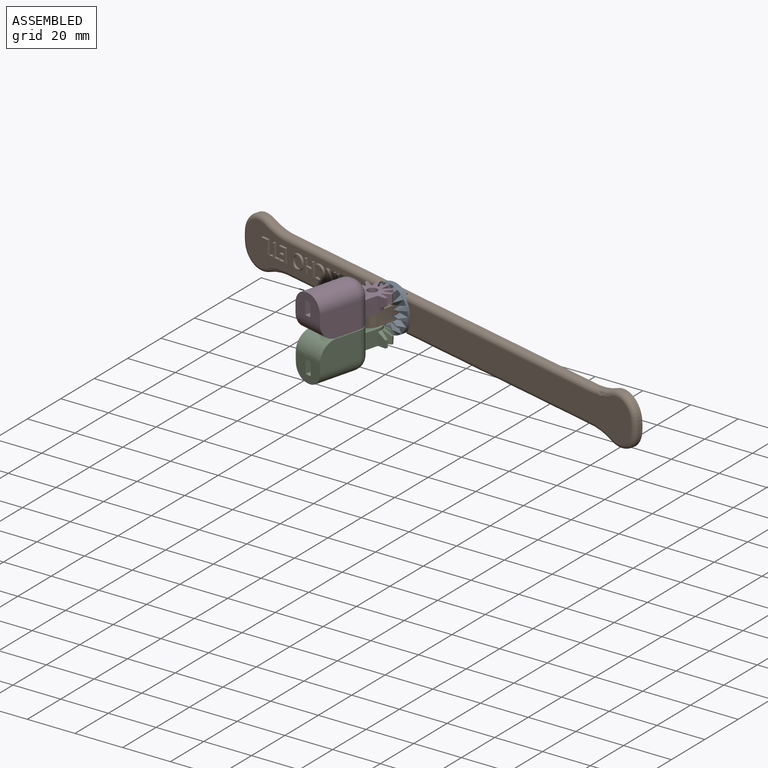
[diagram: assembled view]
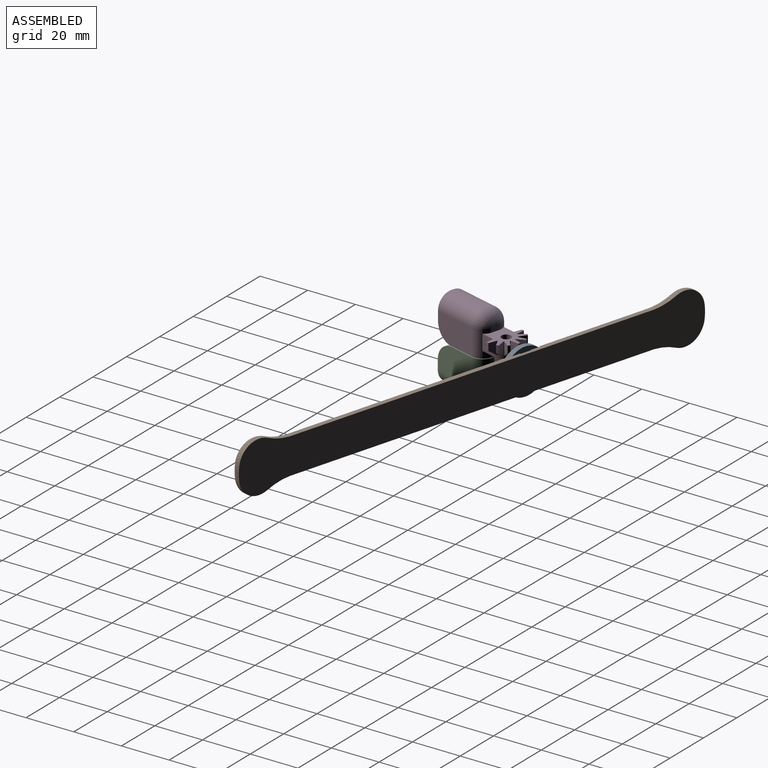
[diagram: assembled view, second angle]
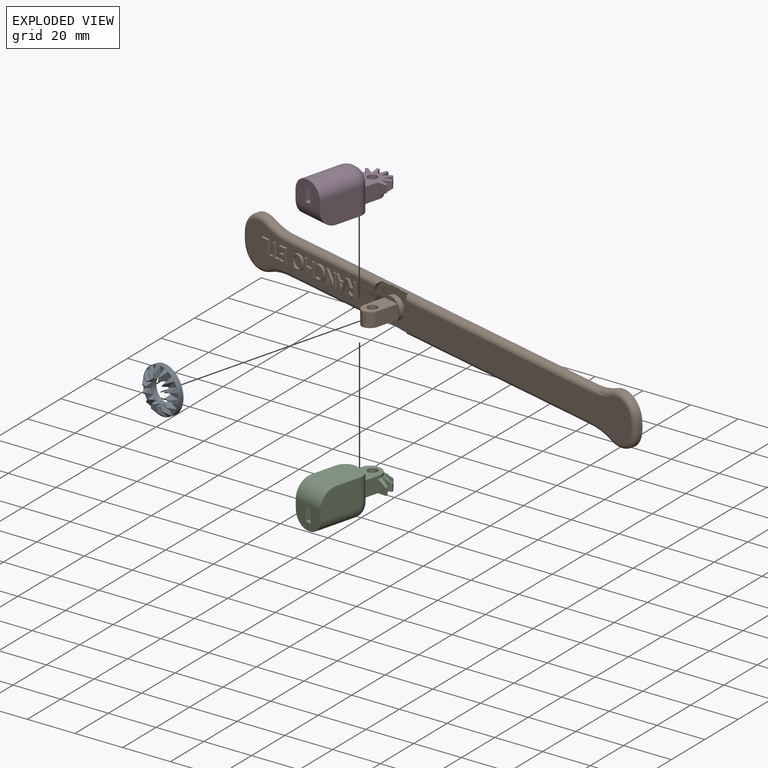
[diagram: exploded view]
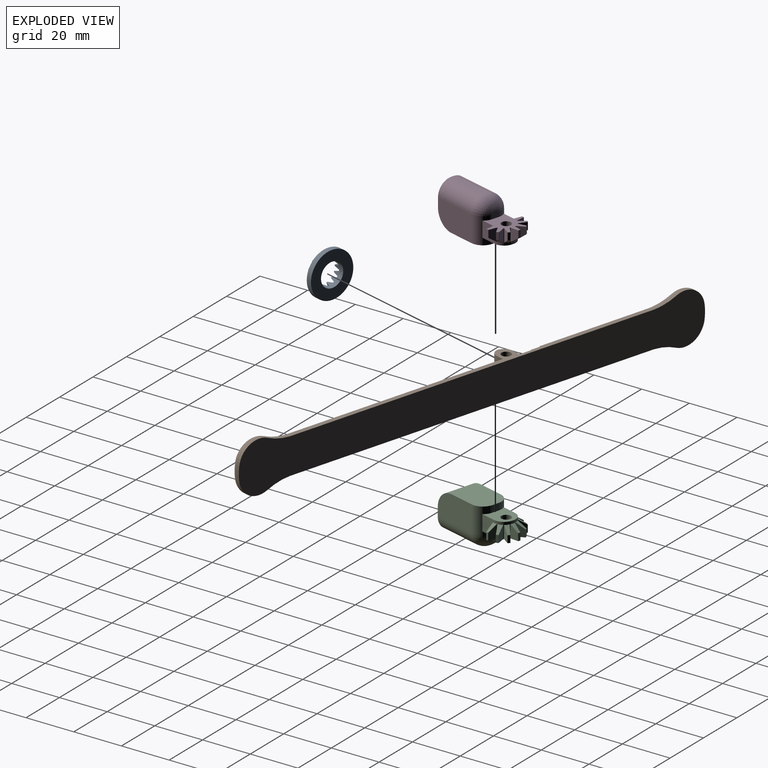
[diagram: exploded view, second angle]
ASSEMBLY  parts=4 mates=3
PART A: 74 faces, bbox 19x19x4.7 mm
  f0: plane 2.04x0.82mm, normal (0,0,1), area 0.8mm2, adj f1,f2,f3,f4
  f1: plane 2.47x1.95mm, normal (0.97,-0.22,0), area 3mm2, adj f0,f2,f4,f72
  f2: plane 4.37x2.47mm, normal (-0.21,-0.93,0.31), area 8.2mm2, adj f0,f1,f3,f72
  f3: plane 2.51x2.47mm, normal (-0.71,0.16,0.68), area 4mm2, adj f0,f2,f4,f72
  f4: plane 4.19x2.47mm, normal (0.21,0.93,0.31), area 8.2mm2, adj f0,f1,f3,f72
  f5: plane 1.81x1.55mm, normal (0,0,1), area 0.8mm2, adj f6,f7,f8,f9
  f6: plane 2.47x1.56mm, normal (0.78,-0.62,0), area 3mm2, adj f5,f7,f9,f72
  f7: plane 3.86x2.68mm, normal (-0.59,-0.74,0.31), area 8.2mm2, adj f5,f6,f8,f72
  f8: plane 2.54x2.47mm, normal (-0.57,0.46,0.68), area 4mm2, adj f5,f7,f9,f72
  f9: plane 3.36x3.31mm, normal (0.59,0.74,0.31), area 8.2mm2, adj f5,f6,f8,f72
  f10: plane 1.97x1.22mm, normal (0,0,1), area 0.8mm2, adj f11,f12,f13,f14
  f11: plane 2.47x1.8mm, normal (0.43,-0.9,0), area 3mm2, adj f10,f12,f14,f72
  f12: plane 3.87x2.59mm, normal (-0.86,-0.41,0.31), area 8.2mm2, adj f10,f11,f13,f72
  f13: plane 2.59x2.47mm, normal (-0.32,0.66,0.68), area 4mm2, adj f10,f12,f14,f72
  f14: plane 4.22x2.47mm, normal (0.86,0.41,0.31), area 8.2mm2, adj f10,f11,f13,f72
  f15: plane 2x0.39mm, normal (0,0,1), area 0.8mm2, adj f16,f17,f18,f19
  f16: plane 2.47x2mm, normal (0,-1,0), area 3mm2, adj f15,f17,f19,f72
  f17: plane 4.3x2.47mm, normal (-0.95,0,0.31), area 8.2mm2, adj f15,f16,f18,f72
  f18: plane 2.47x2.3mm, normal (0,0.73,0.68), area 4mm2, adj f15,f17,f19,f72
  f19: plane 4.3x2.47mm, normal (0.95,0,0.31), area 8.2mm2, adj f15,f16,f18,f72
  f20: plane 1.97x1.22mm, normal (0,0,1), area 0.8mm2, adj f21,f22,f23,f24
  f21: plane 2.47x1.8mm, normal (-0.43,-0.9,0), area 3mm2, adj f20,f22,f24,f72
  f22: plane 4.22x2.47mm, normal (-0.86,0.41,0.31), area 8.2mm2, adj f20,f21,f23,f72
  f23: plane 2.59x2.47mm, normal (0.32,0.66,0.68), area 4mm2, adj f20,f22,f24,f72
  f24: plane 3.87x2.59mm, normal (0.86,-0.41,0.31), area 8.2mm2, adj f20,f21,f23,f72
  f25: plane 1.81x1.55mm, normal (0,0,1), area 0.8mm2, adj f26,f27,f28,f29
  f26: plane 2.47x1.56mm, normal (-0.78,-0.62,0), area 3mm2, adj f25,f27,f29,f72
  f27: plane 3.36x3.31mm, normal (-0.59,0.74,0.31), area 8.2mm2, adj f25,f26,f28,f72
  f28: plane 2.54x2.47mm, normal (0.57,0.46,0.68), area 4mm2, adj f25,f27,f29,f72
  f29: plane 3.86x2.68mm, normal (0.59,-0.74,0.31), area 8.2mm2, adj f25,f26,f28,f72
  f30: plane 2.04x0.82mm, normal (0,0,1), area 0.8mm2, adj f31,f32,f33,f34
  f31: plane 2.47x1.95mm, normal (-0.97,-0.22,0), area 3mm2, adj f30,f32,f34,f72
  f32: plane 4.19x2.47mm, normal (-0.21,0.93,0.31), area 8.2mm2, adj f30,f31,f33,f72
  f33: plane 2.51x2.47mm, normal (0.71,0.16,0.68), area 4mm2, adj f30,f32,f34,f72
  f34: plane 4.37x2.47mm, normal (0.21,-0.93,0.31), area 8.2mm2, adj f30,f31,f33,f72
  f35: plane 2.04x0.82mm, normal (0,0,1), area 0.8mm2, adj f36,f37,f38,f39
  f36: plane 2.47x1.95mm, normal (-0.97,0.22,0), area 3mm2, adj f35,f37,f39,f72
  f37: plane 4.37x2.47mm, normal (0.21,0.93,0.31), area 8.2mm2, adj f35,f36,f38,f72
  f38: plane 2.51x2.47mm, normal (0.71,-0.16,0.68), area 4mm2, adj f35,f37,f39,f72
  f39: plane 4.19x2.47mm, normal (-0.21,-0.93,0.31), area 8.2mm2, adj f35,f36,f38,f72
  f40: plane 1.81x1.55mm, normal (0,0,1), area 0.8mm2, adj f41,f42,f43,f44
  f41: plane 2.47x1.56mm, normal (-0.78,0.62,0), area 3mm2, adj f40,f42,f44,f72
  f42: plane 3.86x2.68mm, normal (0.59,0.74,0.31), area 8.2mm2, adj f40,f41,f43,f72
  f43: plane 2.54x2.47mm, normal (0.57,-0.46,0.68), area 4mm2, adj f40,f42,f44,f72
  f44: plane 3.36x3.31mm, normal (-0.59,-0.74,0.31), area 8.2mm2, adj f40,f41,f43,f72
  f45: plane 1.97x1.22mm, normal (0,0,1), area 0.8mm2, adj f46,f47,f48,f49
  f46: plane 2.47x1.8mm, normal (-0.43,0.9,0), area 3mm2, adj f45,f47,f49,f72
  f47: plane 3.87x2.59mm, normal (0.86,0.41,0.31), area 8.2mm2, adj f45,f46,f48,f72
  f48: plane 2.59x2.47mm, normal (0.32,-0.66,0.68), area 4mm2, adj f45,f47,f49,f72
  f49: plane 4.22x2.47mm, normal (-0.86,-0.41,0.31), area 8.2mm2, adj f45,f46,f48,f72
  f50: plane 2x0.39mm, normal (0,0,1), area 0.8mm2, adj f51,f52,f53,f54
  f51: plane 2.47x2mm, normal (0,1,0), area 3mm2, adj f50,f52,f54,f72
  f52: plane 4.3x2.47mm, normal (0.95,0,0.31), area 8.2mm2, adj f50,f51,f53,f72
  f53: plane 2.47x2.3mm, normal (0,-0.73,0.68), area 4mm2, adj f50,f52,f54,f72
  f54: plane 4.3x2.47mm, normal (-0.95,0,0.31), area 8.2mm2, adj f50,f51,f53,f72
  f55: plane 1.97x1.22mm, normal (0,0,1), area 0.8mm2, adj f56,f57,f58,f59
  f56: plane 2.47x1.8mm, normal (0.43,0.9,0), area 3mm2, adj f55,f57,f59,f72
  f57: plane 4.22x2.47mm, normal (0.86,-0.41,0.31), area 8.2mm2, adj f55,f56,f58,f72
  f58: plane 2.59x2.47mm, normal (-0.32,-0.66,0.68), area 4mm2, adj f55,f57,f59,f72
  f59: plane 3.87x2.59mm, normal (-0.86,0.41,0.31), area 8.2mm2, adj f55,f56,f58,f72
  f60: plane 1.81x1.55mm, normal (0,0,1), area 0.8mm2, adj f61,f62,f63,f64
  f61: plane 2.47x1.56mm, normal (0.78,0.62,0), area 3mm2, adj f60,f62,f64,f72
  f62: plane 3.36x3.31mm, normal (0.59,-0.74,0.31), area 8.2mm2, adj f60,f61,f63,f72
  f63: plane 2.54x2.47mm, normal (-0.57,-0.46,0.68), area 4mm2, adj f60,f62,f64,f72
  f64: plane 3.86x2.68mm, normal (-0.59,0.74,0.31), area 8.2mm2, adj f60,f61,f63,f72
  f65: plane 2.04x0.82mm, normal (0,0,1), area 0.8mm2, adj f66,f67,f68,f69
  f66: plane 2.47x1.95mm, normal (0.97,0.22,0), area 3mm2, adj f65,f67,f69,f72
  f67: plane 4.19x2.47mm, normal (0.21,-0.93,0.31), area 8.2mm2, adj f65,f66,f68,f72
  f68: plane 2.51x2.47mm, normal (-0.71,-0.16,0.68), area 4mm2, adj f65,f67,f69,f72
  f69: plane 4.37x2.47mm, normal (-0.21,0.93,0.31), area 8.2mm2, adj f65,f66,f68,f72
  f70: plane 19x19mm, normal (0,0,-1), area 205mm2, adj f71,f73
  f71: cylinder r=9.5mm len=19mm, axis (0,0,-1), area 134.3mm2, adj f70,f72
  f72: plane 19x19mm, normal (0,0,1), area 84.6mm2, adj f1,f2,f3,f4,f6,f7,f8,f9
  f73: cylinder r=5mm len=10mm, axis (0,0,-1), area 70.7mm2, adj f70,f72
PART B: 187 faces, bbox 210.4x16.5x22.9 mm
  f0: cylinder r=2mm len=51.92mm, axis (-1,0,0), area 147.4mm2, adj f2,f3,f11,f145,f170,f173
  f1: cylinder r=2mm len=102.6mm, axis (1,0,0), area 306.6mm2, adj f4,f15,f151,f169,f171,f175
  f2: plane 14.98x7.87mm, normal (0,-1,0), area 42.7mm2, adj f0,f14,f170,f173
  f3: plane 68.69x17.51mm, normal (0,-1,0), area 700.7mm2, adj f0,f14,f24,f25,f26,f27,f28,f29
  f4: plane 119.37x17.51mm, normal (0,-1,0), area 1364mm2, adj f1,f9,f150,f151,f155,f156,f157,f162
  f5: cylinder r=26.82mm len=0.07mm, axis (0,1,0), area 0mm2, adj f17,f147,f159
  f6: cylinder r=26.82mm len=10.02mm, axis (0,1,0), area 16.2mm2, adj f11,f13,f16,f158,f167
  f7: cylinder r=26.82mm len=0.07mm, axis (0,1,0), area 0mm2, adj f12,f150,f155
  f8: cylinder r=26.82mm len=10.02mm, axis (0,1,0), area 16.2mm2, adj f10,f15,f16,f156,f163
  f9: cylinder r=2mm len=102.6mm, axis (-1,0,0), area 306.6mm2, adj f4,f11,f150,f169,f171,f175
  f10: cylinder r=2mm len=2.2mm, axis (1,0,0), area 1.2mm2, adj f8,f15,f152,f156
  f11: plane 163.61x1.5mm, normal (0,0,-1), area 245mm2, adj f0,f6,f9,f12,f13,f16,f154,f172
  f12: cylinder r=2mm len=2.2mm, axis (-1,0,0), area 1.2mm2, adj f7,f11,f154,f155
  f13: cylinder r=2mm len=2.2mm, axis (-1,0,0), area 1.2mm2, adj f6,f11,f148,f158
  f14: cylinder r=2mm len=51.92mm, axis (1,0,0), area 147.4mm2, adj f2,f3,f15,f147,f170,f173
  f15: plane 163.61x1.5mm, normal (0,0,1), area 245mm2, adj f1,f8,f10,f14,f16,f17,f146,f172
  f16: plane 209.23x21.37mm, normal (0,1,0), area 3258.6mm2, adj f6,f8,f11,f15,f146,f149,f153,f154
  f17: cylinder r=2mm len=2.2mm, axis (1,0,0), area 1.2mm2, adj f5,f15,f146,f159
  f18: plane 1x0.95mm, normal (0,0,1), area 1mm2, adj f19,f35,f36,f37
  f19: plane 2.28x1mm, normal (1,0,0), area 2.3mm2, adj f18,f20,f36,f37
  f20: plane 1x0.9mm, normal (0,0,-1), area 0.9mm2, adj f19,f21,f36,f37
  f21: extruded ~1.12x1mm, area 1.2mm2, adj f20,f22,f36,f37
  f22: extruded ~1x0.85mm, area 1mm2, adj f21,f23,f36,f37
  f23: extruded ~1x0.88mm, area 1mm2, adj f22,f35,f36,f37
  f24: plane 2.48x1mm, normal (1,0,0), area 2.5mm2, adj f3,f25,f34,f36
  f25: plane 1.25x1mm, normal (0,0,-1), area 1.2mm2, adj f3,f24,f26,f36
  f26: plane 2.48x1.44mm, normal (-0.86,0,-0.5), area 2.9mm2, adj f3,f25,f27,f36
  f27: plane 1x0.82mm, normal (0,0,-1), area 0.8mm2, adj f3,f26,f28,f36
  f28: plane 2.68x1.62mm, normal (0.86,0,0.52), area 3.1mm2, adj f3,f27,f29,f36
  f29: extruded ~1.6x1.2mm, area 2.2mm2, adj f3,f28,f30,f36
  f30: extruded ~1.27x1mm, area 1.4mm2, adj f3,f29,f31,f36
  f31: extruded ~1.62x1mm, area 1.7mm2, adj f3,f30,f32,f36
  f32: plane 1.64x1mm, normal (0,0,1), area 1.6mm2, adj f3,f31,f33,f36
  f33: plane 5.97x1mm, normal (-1,0,0), area 6mm2, adj f3,f32,f34,f36
  f34: plane 1x0.69mm, normal (0,0,-1), area 0.7mm2, adj f3,f24,f33,f36
  f35: extruded ~1.08x1mm, area 1.1mm2, adj f18,f23,f36,f37
  f36: plane 5.97x4.2mm, normal (0,-1,0), area 10.7mm2, adj f18,f19,f20,f21,f22,f23,f24,f25
  f37: plane 2.37x2.28mm, normal (0,-1,0), area 4.9mm2, adj f18,f19,f20,f21,f22,f23,f35
  f38: plane 1.85x1mm, normal (-0.94,0,-0.35), area 2mm2, adj f39,f50,f51,f52
  f39: plane 1.93x1mm, normal (0,0,1), area 1.9mm2, adj f38,f40,f51,f52
  f40: plane 1.85x1mm, normal (0.94,0,-0.35), area 2mm2, adj f39,f41,f51,f52
  f41: extruded ~1x0.86mm, area 0.9mm2, adj f40,f50,f51,f52
  f42: plane 1.9x1mm, normal (-0.93,0,-0.36), area 2mm2, adj f3,f43,f49,f51
  f43: plane 1x0.72mm, normal (0,0,-1), area 0.7mm2, adj f3,f42,f44,f51
  f44: plane 5.99x2.35mm, normal (0.93,0,0.36), area 6.4mm2, adj f3,f43,f45,f51
  f45: plane 1x0.58mm, normal (0,0,1), area 0.6mm2, adj f3,f44,f46,f51
  f46: plane 5.99x2.36mm, normal (-0.93,0,0.37), area 6.4mm2, adj f3,f45,f47,f51
  f47: plane 1x0.7mm, normal (0,0,-1), area 0.7mm2, adj f3,f46,f48,f51
  f48: plane 1.9x1mm, normal (0.93,0,-0.36), area 2mm2, adj f3,f47,f49,f51
  f49: plane 2.39x1mm, normal (0,0,-1), area 2.4mm2, adj f3,f42,f48,f51
  f50: extruded ~1x0.86mm, area 0.9mm2, adj f38,f41,f51,f52
  f51: plane 5.99x5.29mm, normal (0,-1,0), area 9.2mm2, adj f38,f39,f40,f41,f42,f43,f44,f45
  f52: plane 2.71x1.93mm, normal (0,-1,0), area 2.5mm2, adj f38,f39,f40,f41,f50
  f53: plane 1x0.79mm, normal (0,0,-1), area 0.8mm2, adj f3,f54,f67,f68
  f54: plane 5.97x1mm, normal (1,0,0), area 6mm2, adj f3,f53,f55,f68
  f55: plane 1x0.65mm, normal (0,0,1), area 0.6mm2, adj f3,f54,f56,f68
  f56: plane 3.42x1mm, normal (-1,0,0), area 3.4mm2, adj f3,f55,f57,f68
  f57: extruded ~1x0.86mm, area 0.9mm2, adj f3,f56,f58,f68
  f58: extruded ~1x0.71mm, area 0.7mm2, adj f3,f57,f59,f68
  f59: plane 1x0.03mm, normal (0,0,1), area 0mm2, adj f3,f58,f60,f68
  f60: plane 4.99x3.25mm, normal (0.84,0,0.55), area 6mm2, adj f3,f59,f61,f68
  f61: plane 1x0.78mm, normal (0,0,1), area 0.8mm2, adj f3,f60,f62,f68
  f62: plane 5.97x1mm, normal (-1,0,0), area 6mm2, adj f3,f61,f63,f68
  f63: plane 1x0.64mm, normal (0,0,-1), area 0.6mm2, adj f3,f62,f64,f68
  f64: plane 3.39x1mm, normal (1,0,0), area 3.4mm2, adj f3,f63,f65,f68
  f65: extruded ~1.62x1mm, area 1.6mm2, adj f3,f64,f66,f68
  f66: plane 1x0.03mm, normal (0,0,-1), area 0mm2, adj f3,f65,f67,f68
  f67: plane 5.01x3.26mm, normal (-0.84,0,-0.55), area 6mm2, adj f3,f53,f66,f68
  f68: plane 5.97x4.66mm, normal (0,-1,0), area 11.8mm2, adj f53,f54,f55,f56,f57,f58,f59,f60
  f69: extruded ~1.55x1mm, area 1.7mm2, adj f3,f70,f83,f84
  f70: extruded ~1.36x1mm, area 1.4mm2, adj f3,f69,f71,f84
  f71: plane 1x0.6mm, normal (0.9,0,-0.44), area 0.7mm2, adj f3,f70,f72,f84
  f72: extruded ~1.64x1mm, area 1.7mm2, adj f3,f71,f73,f84
  f73: extruded ~1.53x1mm, area 1.6mm2, adj f3,f72,f74,f84
  f74: extruded ~1.07x1mm, area 1.5mm2, adj f3,f73,f75,f84
  f75: extruded ~1.62x1mm, area 1.7mm2, adj f3,f74,f76,f84
  f76: extruded ~2.27x1mm, area 2.4mm2, adj f3,f75,f77,f84
  f77: extruded ~2.03x1mm, area 2.3mm2, adj f3,f76,f78,f84
  f78: extruded ~1.53x1mm, area 1.6mm2, adj f3,f77,f79,f84
  f79: plane 1x0.61mm, normal (1,0,0), area 0.6mm2, adj f3,f78,f80,f84
  f80: extruded ~1.42x1mm, area 1.4mm2, adj f3,f79,f81,f84
  f81: extruded ~1.57x1mm, area 1.7mm2, adj f3,f80,f82,f84
  f82: extruded ~1.81x1mm, area 1.9mm2, adj f3,f81,f83,f84
  f83: extruded ~1.79x1mm, area 1.9mm2, adj f3,f69,f82,f84
  f84: plane 6.13x4.51mm, normal (0,-1,0), area 7.8mm2, adj f69,f70,f71,f72,f73,f74,f75,f76
  f85: plane 1x0.69mm, normal (0,0,-1), area 0.7mm2, adj f3,f86,f96,f97
  f86: plane 5.97x1mm, normal (1,0,0), area 6mm2, adj f3,f85,f87,f97
  f87: plane 1x0.69mm, normal (0,0,1), area 0.7mm2, adj f3,f86,f88,f97
  f88: plane 2.54x1mm, normal (-1,0,0), area 2.5mm2, adj f3,f87,f89,f97
  f89: plane 3.14x1mm, normal (0,0,1), area 3.1mm2, adj f3,f88,f90,f97
  f90: plane 2.54x1mm, normal (1,0,0), area 2.5mm2, adj f3,f89,f91,f97
  f91: plane 1x0.69mm, normal (0,0,1), area 0.7mm2, adj f3,f90,f92,f97
  f92: plane 5.97x1mm, normal (-1,0,0), area 6mm2, adj f3,f91,f93,f97
  f93: plane 1x0.69mm, normal (0,0,-1), area 0.7mm2, adj f3,f92,f94,f97
  f94: plane 2.81x1mm, normal (1,0,0), area 2.8mm2, adj f3,f93,f95,f97
  f95: plane 3.14x1mm, normal (0,0,-1), area 3.1mm2, adj f3,f94,f96,f97
  f96: plane 2.81x1mm, normal (-1,0,0), area 2.8mm2, adj f3,f85,f95,f97
  f97: plane 5.97x4.53mm, normal (0,-1,0), area 10.2mm2, adj f85,f86,f87,f88,f89,f90,f91,f92
  f98: extruded ~1.84x1mm, area 1.9mm2, adj f99,f113,f114,f115
  f99: extruded ~1.82x1mm, area 1.9mm2, adj f98,f100,f114,f115
  f100: extruded ~1.51x1mm, area 1.7mm2, adj f99,f101,f114,f115
  f101: extruded ~1.49x1mm, area 1.7mm2, adj f100,f102,f114,f115
  f102: extruded ~1.83x1mm, area 1.9mm2, adj f101,f103,f114,f115
  f103: extruded ~1.84x1mm, area 1.9mm2, adj f102,f104,f114,f115
  f104: extruded ~1.5x1mm, area 1.7mm2, adj f103,f113,f114,f115
  f105: extruded ~2.25x1mm, area 2.4mm2, adj f3,f106,f112,f114
  f106: extruded ~2.25x1mm, area 2.4mm2, adj f3,f105,f107,f114
  f107: extruded ~2.01x1mm, area 2.2mm2, adj f3,f106,f108,f114
  f108: extruded ~2.04x1mm, area 2.3mm2, adj f3,f107,f109,f114
  f109: extruded ~2.26x1mm, area 2.4mm2, adj f3,f108,f110,f114
  f110: extruded ~2.28x1mm, area 2.4mm2, adj f3,f109,f111,f114
  f111: extruded ~2.03x1mm, area 2.3mm2, adj f3,f110,f112,f114
  f112: extruded ~2.01x1mm, area 2.2mm2, adj f3,f105,f111,f114
  f113: extruded ~1.5x1mm, area 1.7mm2, adj f98,f104,f114,f115
  f114: plane 6.14x5.49mm, normal (0,-1,0), area 11.3mm2, adj f98,f99,f100,f101,f102,f103,f104,f105
  f115: plane 4.91x4.02mm, normal (0,-1,0), area 16.4mm2, adj f98,f99,f100,f101,f102,f103,f104,f113
  f116: plane 3.33x1mm, normal (0,0,-1), area 3.3mm2, adj f3,f117,f127,f128
  f117: plane 1x0.62mm, normal (1,0,0), area 0.6mm2, adj f3,f116,f118,f128
  f118: plane 2.63x1mm, normal (0,0,1), area 2.6mm2, adj f3,f117,f119,f128
  f119: plane 2.2x1mm, normal (1,0,0), area 2.2mm2, adj f3,f118,f120,f128
  f120: plane 2.47x1mm, normal (0,0,-1), area 2.5mm2, adj f3,f119,f121,f128
  f121: plane 1x0.61mm, normal (1,0,0), area 0.6mm2, adj f3,f120,f122,f128
  f122: plane 2.47x1mm, normal (0,0,1), area 2.5mm2, adj f3,f121,f123,f128
  f123: plane 1.92x1mm, normal (1,0,0), area 1.9mm2, adj f3,f122,f124,f128
  f124: plane 2.63x1mm, normal (0,0,-1), area 2.6mm2, adj f3,f123,f125,f128
  f125: plane 1x0.62mm, normal (1,0,0), area 0.6mm2, adj f3,f124,f126,f128
  f126: plane 3.33x1mm, normal (0,0,1), area 3.3mm2, adj f3,f125,f127,f128
  f127: plane 5.97x1mm, normal (-1,0,0), area 6mm2, adj f3,f116,f126,f128
  f128: plane 5.97x3.33mm, normal (0,-1,0), area 8.9mm2, adj f116,f117,f118,f119,f120,f121,f122,f123
  f129: plane 1x0.69mm, normal (0,0,-1), area 0.7mm2, adj f3,f130,f136,f137
  f130: plane 5.35x1mm, normal (1,0,0), area 5.4mm2, adj f3,f129,f131,f137
  f131: plane 1.89x1mm, normal (0,0,-1), area 1.9mm2, adj f3,f130,f132,f137
  f132: plane 1x0.62mm, normal (1,0,0), area 0.6mm2, adj f3,f131,f133,f137
  f133: plane 4.47x1mm, normal (0,0,1), area 4.5mm2, adj f3,f132,f134,f137
  f134: plane 1x0.62mm, normal (-1,0,0), area 0.6mm2, adj f3,f133,f135,f137
  f135: plane 1.89x1mm, normal (0,0,-1), area 1.9mm2, adj f3,f134,f136,f137
  f136: plane 5.35x1mm, normal (-1,0,0), area 5.4mm2, adj f3,f129,f135,f137
  f137: plane 5.97x4.47mm, normal (0,-1,0), area 6.5mm2, adj f129,f130,f131,f132,f133,f134,f135,f136
  f138: plane 5.97x1mm, normal (-1,0,0), area 6mm2, adj f3,f139,f143,f144
  f139: plane 3.33x1mm, normal (0,0,-1), area 3.3mm2, adj f3,f138,f140,f144
  f140: plane 1x0.63mm, normal (1,0,0), area 0.6mm2, adj f3,f139,f141,f144
  f141: plane 2.63x1mm, normal (0,0,1), area 2.6mm2, adj f3,f140,f142,f144
  f142: plane 5.34x1mm, normal (1,0,0), area 5.3mm2, adj f3,f141,f143,f144
  f143: plane 1x0.69mm, normal (0,0,1), area 0.7mm2, adj f3,f138,f142,f144
  f144: plane 5.97x3.33mm, normal (0,-1,0), area 5.8mm2, adj f138,f139,f140,f141,f142,f143
  f145: plane 2x2mm, normal (-1,0,0), area 0.1mm2, adj f0,f3,f148,f158
  f146: cylinder r=26.82mm len=10.02mm, axis (0,1,0), area 16.2mm2, adj f15,f16,f17,f159,f165
  f147: plane 2x2mm, normal (-1,0,0), area 0.1mm2, adj f3,f5,f14,f159
  f148: cylinder r=26.82mm len=0.07mm, axis (0,1,0), area 0mm2, adj f13,f145,f158
  f149: cylinder r=23.37mm len=5.51mm, axis (0,1,0), area 8.7mm2, adj f16,f160,f165,f167
  f150: plane 2x2mm, normal (1,0,0), area 0.1mm2, adj f4,f7,f9,f155
  f151: plane 2x2mm, normal (1,0,0), area 0.1mm2, adj f1,f4,f152,f156
  f152: cylinder r=26.82mm len=0.07mm, axis (0,1,0), area 0mm2, adj f10,f151,f156
  f153: cylinder r=23.37mm len=5.51mm, axis (0,1,0), area 8.7mm2, adj f16,f157,f161,f163
  f154: cylinder r=26.82mm len=10.02mm, axis (0,1,0), area 16.2mm2, adj f11,f12,f16,f155,f161
  f155: torus R=28.75mm, axis (0,-1,0), area 37.9mm2, adj f4,f7,f12,f150,f154,f162
  f156: torus R=28.75mm, axis (0,-1,0), area 37.9mm2, adj f4,f8,f10,f151,f152,f164
  f157: torus R=21.43mm, axis (0,-1,0), area 16.2mm2, adj f4,f153,f162,f164
  f158: torus R=28.75mm, axis (0,-1,0), area 37.9mm2, adj f3,f6,f13,f145,f148,f168
  f159: torus R=28.75mm, axis (0,-1,0), area 37.9mm2, adj f3,f5,f17,f146,f147,f166
  f160: torus R=21.43mm, axis (0,-1,0), area 16.2mm2, adj f3,f149,f166,f168
  f161: cylinder r=8.99mm len=12.65mm, axis (0,-1,0), area 26.5mm2, adj f16,f153,f154,f162
  f162: torus R=7.06mm, axis (0,-1,0), area 47.3mm2, adj f4,f155,f157,f161
  f163: cylinder r=8.99mm len=12.65mm, axis (0,-1,0), area 26.5mm2, adj f8,f16,f153,f164
  f164: torus R=7.06mm, axis (0,-1,0), area 47.3mm2, adj f4,f156,f157,f163
  f165: cylinder r=8.99mm len=12.65mm, axis (0,-1,0), area 26.5mm2, adj f16,f146,f149,f166
  f166: torus R=7.06mm, axis (0,-1,0), area 47.3mm2, adj f3,f159,f160,f165
  f167: cylinder r=8.99mm len=12.65mm, axis (0,-1,0), area 26.5mm2, adj f6,f16,f149,f168
  f168: torus R=7.06mm, axis (0,-1,0), area 47.3mm2, adj f3,f158,f160,f167
  f169: cylinder r=10.25mm len=14.98mm, axis (0,-1,0), area 27.9mm2, adj f1,f4,f9,f171
  f170: cylinder r=10.25mm len=14.98mm, axis (0,-1,0), area 27.9mm2, adj f0,f2,f3,f14
  f171: plane 14.98x7.87mm, normal (0,-1,0), area 42.7mm2, adj f1,f9,f169,f175
  f172: plane 15.72x15mm, normal (0,-1,0), area 124.9mm2, adj f11,f15,f173,f174,f175
  f173: cylinder r=7.86mm len=15mm, axis (0,-1,0), area 6mm2, adj f0,f2,f11,f14,f15,f172
  f174: cylinder r=4.61mm len=9.23mm, axis (0,-1,0), area 8.7mm2, adj f172,f176
  f175: cylinder r=7.86mm len=15mm, axis (0,-1,0), area 6mm2, adj f1,f9,f11,f15,f171,f172
  f176: plane 9.25x9.25mm, normal (0,1,0), area 0.4mm2, adj f174,f186
  f177: cylinder r=3.86mm len=6mm, axis (0,0,1), area 31.1mm2, adj f178,f182,f183,f184
  f178: cylinder r=2.25mm len=6mm, axis (0,0,-1), area 6.1mm2, adj f177,f179,f182,f184
  f179: cylinder r=3.86mm len=6mm, axis (0,0,-1), area 31.1mm2, adj f178,f181,f182,f184
  f180: cylinder r=2mm len=6mm, axis (0,0,-1), area 75.4mm2, adj f182,f184
  f181: plane 9.14x6mm, normal (1,0,0), area 54.8mm2, adj f179,f182,f184,f185
  f182: plane 12.96x7mm, normal (0,0,1), area 72mm2, adj f177,f178,f179,f180,f181,f183,f185
  f183: plane 9.14x6mm, normal (-1,0,0), area 54.8mm2, adj f177,f182,f184,f185
  f184: plane 12.96x7mm, normal (0,0,-1), area 72mm2, adj f177,f178,f179,f180,f181,f183,f185
  f185: plane 9.25x9.25mm, normal (0,-1,0), area 25.2mm2, adj f181,f182,f183,f184,f186
  f186: cylinder r=4.62mm len=9.25mm, axis (0,-1,0), area 52.3mm2, adj f176,f185
PART C: 56 faces, bbox 35.8x16.1x17 mm
  f0: plane 5.34x3.41mm, normal (-0.99,0.16,0), area 14.4mm2, adj f1,f2,f4,f20
  f1: plane 3.6x2.47mm, normal (0,0.57,-0.83), area 6.2mm2, adj f0,f2,f3,f20,f24
  f2: plane 3x1mm, normal (0,1,0), area 3mm2, adj f0,f1,f3,f4
  f3: plane 5.47x3.6mm, normal (0.99,0.11,0), area 15.3mm2, adj f1,f2,f4,f24
  f4: plane 16.12x14.05mm, normal (0,0,1), area 104.4mm2, adj f0,f2,f3,f11,f14,f18,f19,f20
  f5: plane 3x2.86mm, normal (1,0,0), area 8.6mm2, adj f9,f14,f18,f23
  f6: plane 13x9.76mm, normal (-1,0,0), area 96.3mm2, adj f7,f8,f10,f12,f13,f26,f27,f28
  f7: plane 18x1mm, normal (0,0,1), area 18mm2, adj f6,f12,f13,f16
  f8: plane 18x11mm, normal (0,-1,0), area 186.7mm2, adj f6,f9,f12,f18,f55
  f9: plane 15.76x13mm, normal (0,0,-1), area 194.1mm2, adj f5,f8,f10,f14,f18,f55
  f10: plane 18x11mm, normal (0,1,0), area 186.7mm2, adj f6,f9,f13,f14,f55
  f11: plane 3x2.64mm, normal (1,0,0), area 7.5mm2, adj f4,f14,f15,f16,f17,f18
  f12: cylinder r=6mm len=18mm, axis (-1,0,0), area 169.6mm2, adj f6,f7,f8,f17
  f13: cylinder r=6mm len=18mm, axis (1,0,0), area 169.6mm2, adj f6,f7,f10,f15
  f14: cylinder r=5mm len=11mm, axis (0,0,1), area 63mm2, adj f4,f5,f9,f10,f11,f15,f20,f23
  f15: torus R=1mm, axis (-1,0,0), area 51.6mm2, adj f11,f13,f14,f16
  f16: cylinder r=5mm len=5mm, axis (0,-1,0), area 7.9mm2, adj f7,f11,f15,f17
  f17: torus R=1mm, axis (-1,0,0), area 51.6mm2, adj f11,f12,f16,f18
  f18: cylinder r=5mm len=11mm, axis (0,0,-1), area 65.5mm2, adj f4,f5,f8,f9,f11,f17,f19,f23
  f19: plane 6.5x6.03mm, normal (0,-1,0), area 35.5mm2, adj f4,f18,f23,f25,f53,f54
  f20: plane 6.5x6.27mm, normal (0,1,0), area 37.1mm2, adj f0,f1,f4,f14,f23,f24
  f21: plane 1.16x0.56mm, normal (1,0,0), area 0.7mm2, adj f23,f24,f25,f41
  f22: cylinder r=2mm len=6.5mm, axis (0,0,-1), area 81.7mm2, adj f4,f23
  f23: plane 10.64x9.3mm, normal (0,0,-1), area 68.9mm2, adj f5,f14,f18,f19,f20,f21,f22,f24
  f24: cylinder r=4.37mm len=6.5mm, axis (0,0,1), area 12.6mm2, adj f1,f3,f4,f20,f21,f23,f32,f33
  f25: cylinder r=4.37mm len=6.5mm, axis (0,0,-1), area 12.5mm2, adj f4,f19,f21,f23,f41,f42,f44,f45
  f26: plane 21x2.7mm, normal (0,0,1), area 56.8mm2, adj f6,f27,f29,f30
  f27: plane 21x5.6mm, normal (0,-1,0), area 117.6mm2, adj f6,f26,f28,f30
  f28: plane 21x2.7mm, normal (0,0,-1), area 56.8mm2, adj f6,f27,f29,f30
  f29: plane 21x5.6mm, normal (0,1,0), area 117.6mm2, adj f6,f26,f28,f30
  f30: plane 5.6x2.7mm, normal (-1,0,0), area 15.1mm2, adj f26,f27,f28,f29
  f31: plane 3x0.87mm, normal (0.5,0.87,0), area 3mm2, adj f4,f32,f33,f34
  f32: plane 5.37x2.71mm, normal (-0.77,0.64,0), area 14.7mm2, adj f4,f24,f31,f33
  f33: plane 3.81x3.1mm, normal (0.28,0.49,-0.83), area 6.2mm2, adj f24,f31,f32,f34
  f34: plane 5.47x3.31mm, normal (0.91,-0.4,0), area 15.3mm2, adj f4,f24,f31,f33
  f35: plane 3x0.87mm, normal (0.87,0.5,0), area 3mm2, adj f4,f36,f37,f38
  f36: plane 5.37x3.29mm, normal (-0.35,0.94,0), area 14.7mm2, adj f4,f24,f35,f37
  f37: plane 3.79x3mm, normal (0.49,0.28,-0.83), area 6.2mm2, adj f24,f35,f36,f38
  f38: plane 5.47x2.92mm, normal (0.59,-0.81,0), area 15.3mm2, adj f4,f24,f35,f37
  f39: plane 3x1mm, normal (1,0,0), area 3mm2, adj f4,f40,f41,f42
  f40: plane 5.37x3.46mm, normal (0.16,0.99,0), area 14.7mm2, adj f4,f24,f39,f41
  f41: plane 3.49x2.39mm, normal (0.57,0,-0.83), area 6.1mm2, adj f21,f24,f25,f39,f40,f42
  f42: plane 5.37x3.47mm, normal (0.11,-0.99,0), area 14.6mm2, adj f4,f25,f39,f41
  f43: plane 3x0.87mm, normal (0.87,-0.5,0), area 3mm2, adj f4,f44,f45,f46
  f44: plane 5.47x2.82mm, normal (0.64,0.77,0), area 15.4mm2, adj f4,f25,f43,f45
  f45: plane 3.69x3.18mm, normal (0.49,-0.28,-0.83), area 6.2mm2, adj f25,f43,f44,f46
  f46: plane 5.37x3.19mm, normal (-0.4,-0.91,0), area 14.6mm2, adj f4,f25,f43,f45
  f47: plane 3x0.87mm, normal (0.5,-0.87,0), area 3mm2, adj f4,f48,f49,f50
  f48: plane 5.47x3.42mm, normal (0.94,0.35,0), area 15.4mm2, adj f4,f25,f47,f49
  f49: plane 3.92x2.92mm, normal (0.28,-0.49,-0.83), area 6.2mm2, adj f25,f47,f48,f50
  f50: plane 5.37x2.82mm, normal (-0.81,-0.59,0), area 14.6mm2, adj f4,f25,f47,f49
  f51: plane 3x1mm, normal (0,-1,0), area 3mm2, adj f4,f52,f53,f54
  f52: plane 5.47x3.6mm, normal (0.99,-0.16,0), area 15.4mm2, adj f4,f25,f51,f53
  f53: plane 3.6x2.47mm, normal (0,-0.57,-0.83), area 6.2mm2, adj f19,f25,f51,f52,f54
  f54: plane 5.34x3.41mm, normal (-0.99,-0.11,0), area 14.3mm2, adj f4,f19,f51,f53
  f55: cylinder r=7.24mm len=13mm, axis (0,-1,0), area 147.9mm2, adj f6,f8,f9,f10
PART D: 56 faces, bbox 35.8x16.1x17 mm
  f0: plane 5.34x3.41mm, normal (-0.99,0.16,0), area 14.4mm2, adj f1,f2,f4,f20
  f1: plane 3.6x2.47mm, normal (0,0.57,0.83), area 6.2mm2, adj f0,f2,f3,f20,f24
  f2: plane 3x1mm, normal (0,1,0), area 3mm2, adj f0,f1,f3,f4
  f3: plane 5.47x3.6mm, normal (0.99,0.11,0), area 15.3mm2, adj f1,f2,f4,f24
  f4: plane 16.12x14.05mm, normal (0,0,-1), area 104.4mm2, adj f0,f2,f3,f11,f14,f18,f19,f20
  f5: plane 3x2.86mm, normal (1,0,0), area 8.6mm2, adj f9,f14,f18,f23
  f6: plane 13x9.76mm, normal (-1,0,0), area 96.3mm2, adj f7,f8,f10,f12,f13,f26,f27,f28
  f7: plane 18x1mm, normal (0,0,-1), area 18mm2, adj f6,f12,f13,f16
  f8: plane 18x11mm, normal (0,-1,0), area 186.7mm2, adj f6,f9,f12,f18,f55
  f9: plane 15.76x13mm, normal (0,0,1), area 194.1mm2, adj f5,f8,f10,f14,f18,f55
  f10: plane 18x11mm, normal (0,1,0), area 186.7mm2, adj f6,f9,f13,f14,f55
  f11: plane 3x2.64mm, normal (1,0,0), area 7.5mm2, adj f4,f14,f15,f16,f17,f18
  f12: cylinder r=6mm len=18mm, axis (-1,0,0), area 169.6mm2, adj f6,f7,f8,f17
  f13: cylinder r=6mm len=18mm, axis (1,0,0), area 169.6mm2, adj f6,f7,f10,f15
  f14: cylinder r=5mm len=11mm, axis (0,0,-1), area 63mm2, adj f4,f5,f9,f10,f11,f15,f20,f23
  f15: torus R=1mm, axis (-1,0,0), area 51.6mm2, adj f11,f13,f14,f16
  f16: cylinder r=5mm len=5mm, axis (0,-1,0), area 7.9mm2, adj f7,f11,f15,f17
  f17: torus R=1mm, axis (-1,0,0), area 51.6mm2, adj f11,f12,f16,f18
  f18: cylinder r=5mm len=11mm, axis (0,0,1), area 65.5mm2, adj f4,f5,f8,f9,f11,f17,f19,f23
  f19: plane 6.5x6.03mm, normal (0,-1,0), area 35.5mm2, adj f4,f18,f23,f25,f53,f54
  f20: plane 6.5x6.27mm, normal (0,1,0), area 37.1mm2, adj f0,f1,f4,f14,f23,f24
  f21: plane 1.16x0.56mm, normal (1,0,0), area 0.7mm2, adj f23,f24,f25,f41
  f22: cylinder r=2mm len=6.5mm, axis (0,0,1), area 81.7mm2, adj f4,f23
  f23: plane 10.64x9.3mm, normal (0,0,1), area 68.9mm2, adj f5,f14,f18,f19,f20,f21,f22,f24
  f24: cylinder r=4.37mm len=6.5mm, axis (0,0,-1), area 12.6mm2, adj f1,f3,f4,f20,f21,f23,f32,f33
  f25: cylinder r=4.37mm len=6.5mm, axis (0,0,1), area 12.5mm2, adj f4,f19,f21,f23,f41,f42,f44,f45
  f26: plane 21x2.7mm, normal (0,0,-1), area 56.8mm2, adj f6,f27,f29,f30
  f27: plane 21x5.6mm, normal (0,-1,0), area 117.6mm2, adj f6,f26,f28,f30
  f28: plane 21x2.7mm, normal (0,0,1), area 56.8mm2, adj f6,f27,f29,f30
  f29: plane 21x5.6mm, normal (0,1,0), area 117.6mm2, adj f6,f26,f28,f30
  f30: plane 5.6x2.7mm, normal (-1,0,0), area 15.1mm2, adj f26,f27,f28,f29
  f31: plane 3x0.87mm, normal (0.5,0.87,0), area 3mm2, adj f4,f32,f33,f34
  f32: plane 5.37x2.71mm, normal (-0.77,0.64,0), area 14.7mm2, adj f4,f24,f31,f33
  f33: plane 3.81x3.1mm, normal (0.28,0.49,0.83), area 6.2mm2, adj f24,f31,f32,f34
  f34: plane 5.47x3.31mm, normal (0.91,-0.4,0), area 15.3mm2, adj f4,f24,f31,f33
  f35: plane 3x0.87mm, normal (0.87,0.5,0), area 3mm2, adj f4,f36,f37,f38
  f36: plane 5.37x3.29mm, normal (-0.35,0.94,0), area 14.7mm2, adj f4,f24,f35,f37
  f37: plane 3.79x3mm, normal (0.49,0.28,0.83), area 6.2mm2, adj f24,f35,f36,f38
  f38: plane 5.47x2.92mm, normal (0.59,-0.81,0), area 15.3mm2, adj f4,f24,f35,f37
  f39: plane 3x1mm, normal (1,0,0), area 3mm2, adj f4,f40,f41,f42
  f40: plane 5.37x3.46mm, normal (0.16,0.99,0), area 14.7mm2, adj f4,f24,f39,f41
  f41: plane 3.49x2.39mm, normal (0.57,0,0.83), area 6.1mm2, adj f21,f24,f25,f39,f40,f42
  f42: plane 5.37x3.47mm, normal (0.11,-0.99,0), area 14.6mm2, adj f4,f25,f39,f41
  f43: plane 3x0.87mm, normal (0.87,-0.5,0), area 3mm2, adj f4,f44,f45,f46
  f44: plane 5.47x2.82mm, normal (0.64,0.77,0), area 15.4mm2, adj f4,f25,f43,f45
  f45: plane 3.69x3.18mm, normal (0.49,-0.28,0.83), area 6.2mm2, adj f25,f43,f44,f46
  f46: plane 5.37x3.19mm, normal (-0.4,-0.91,0), area 14.6mm2, adj f4,f25,f43,f45
  f47: plane 3x0.87mm, normal (0.5,-0.87,0), area 3mm2, adj f4,f48,f49,f50
  f48: plane 5.47x3.42mm, normal (0.94,0.35,0), area 15.4mm2, adj f4,f25,f47,f49
  f49: plane 3.92x2.92mm, normal (0.28,-0.49,0.83), area 6.2mm2, adj f25,f47,f48,f50
  f50: plane 5.37x2.82mm, normal (-0.81,-0.59,0), area 14.6mm2, adj f4,f25,f47,f49
  f51: plane 3x1mm, normal (0,-1,0), area 3mm2, adj f4,f52,f53,f54
  f52: plane 5.47x3.6mm, normal (0.99,-0.16,0), area 15.4mm2, adj f4,f25,f51,f53
  f53: plane 3.6x2.47mm, normal (0,-0.57,0.83), area 6.2mm2, adj f19,f25,f51,f52,f54
  f54: plane 5.34x3.41mm, normal (-0.99,-0.11,0), area 14.3mm2, adj f4,f19,f51,f53
  f55: cylinder r=7.24mm len=13mm, axis (0,-1,0), area 147.9mm2, adj f6,f8,f9,f10
PLACE A rot(axis=(0.37,-0.71,0.59),123.3deg) t=(-214.82,-87.1,14.62)mm
PLACE B rot(axis=(0.13,0.99,0),179.6deg) t=(-189.91,-92.01,14.78)mm
PLACE C rot(axis=(0.79,0.61,0),179.8deg) t=(-212.52,-124.47,14.94)mm
PLACE D rot(axis=(0.79,0.61,0),179.8deg) t=(-212.52,-124.47,14.34)mm
MATE revolute D.f22 <-> B.f180  axis (0.01,0,-1) through (-217.46,-96.93,17.6)mm
MATE revolute C.f22 <-> B.f180  axis (-0.01,0,1) through (-217.42,-96.93,11.6)mm
MATE revolute B.f169 <-> A.f71  axis (-0.26,-0.97,0) through (-214.83,-87.12,14.62)mm
